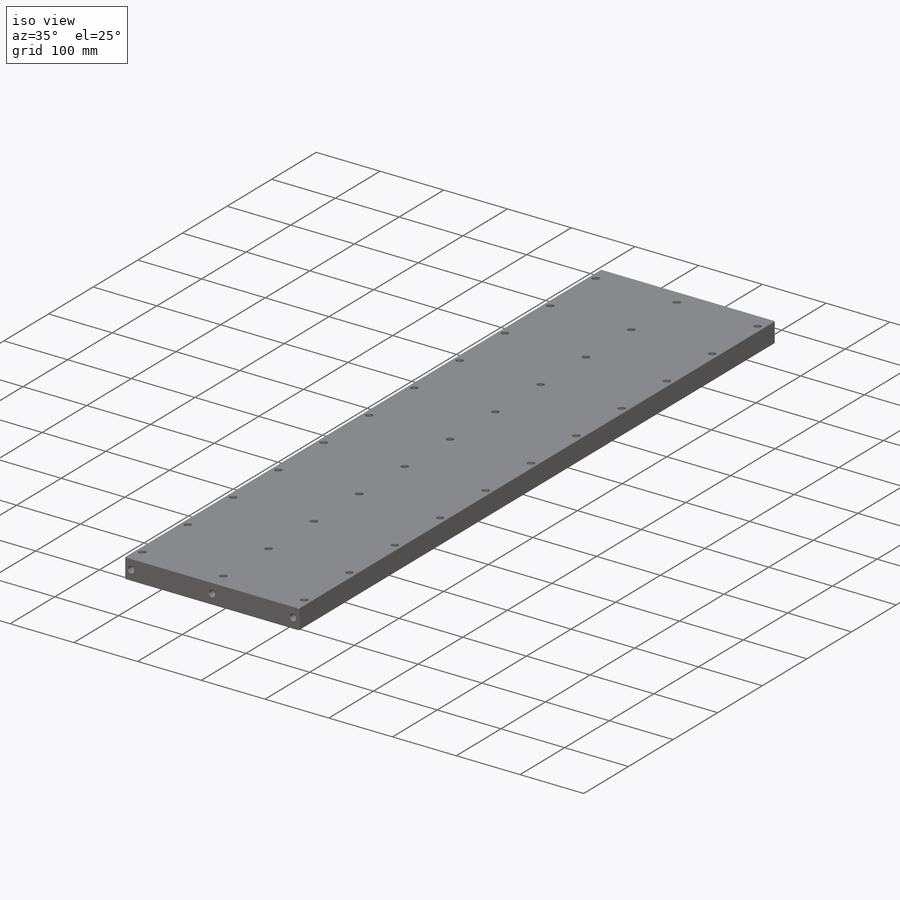
[diagram: iso view]
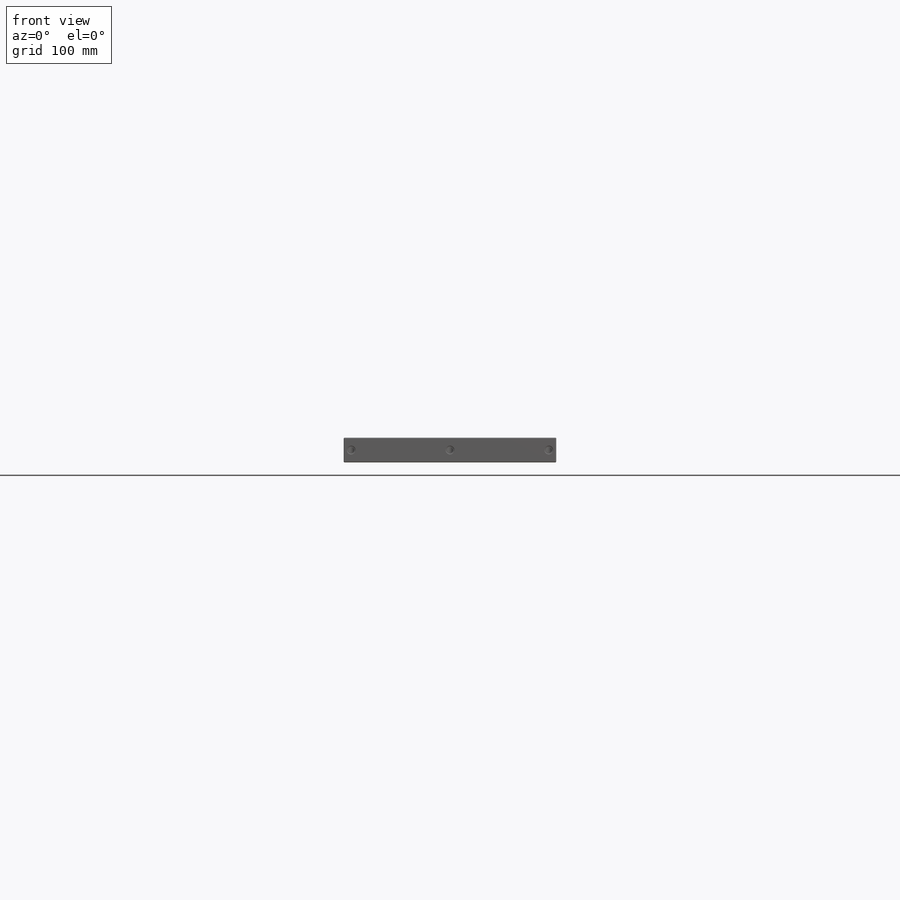
[diagram: front view]
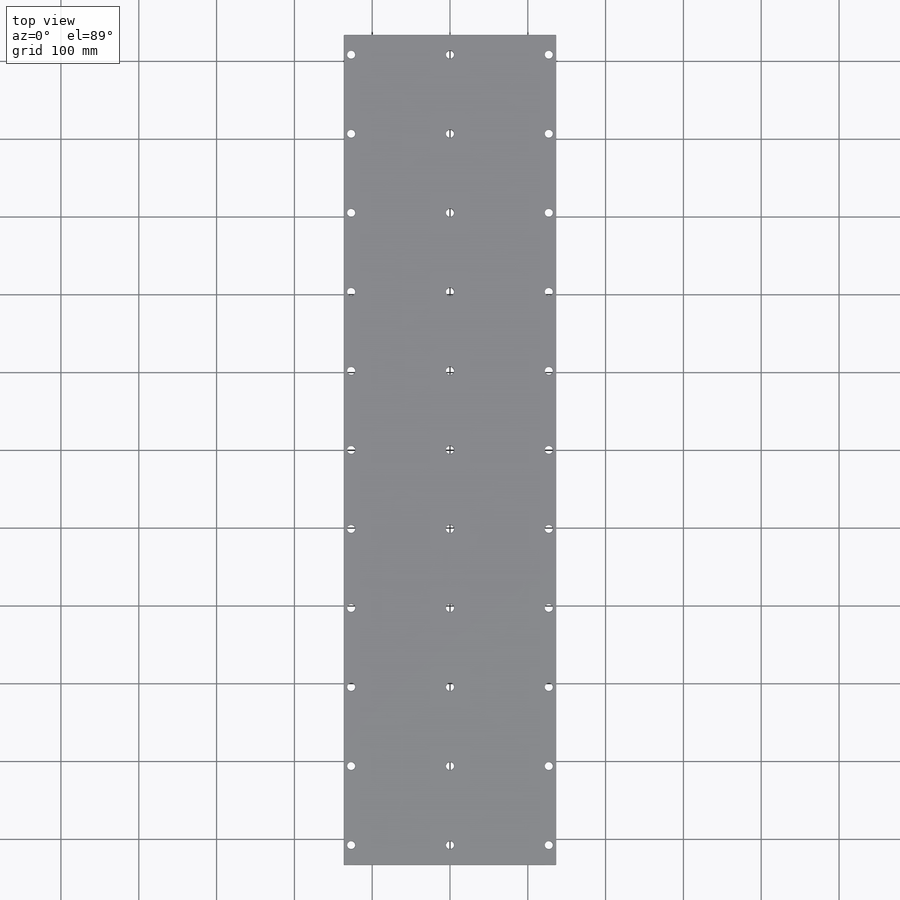
[diagram: top view]
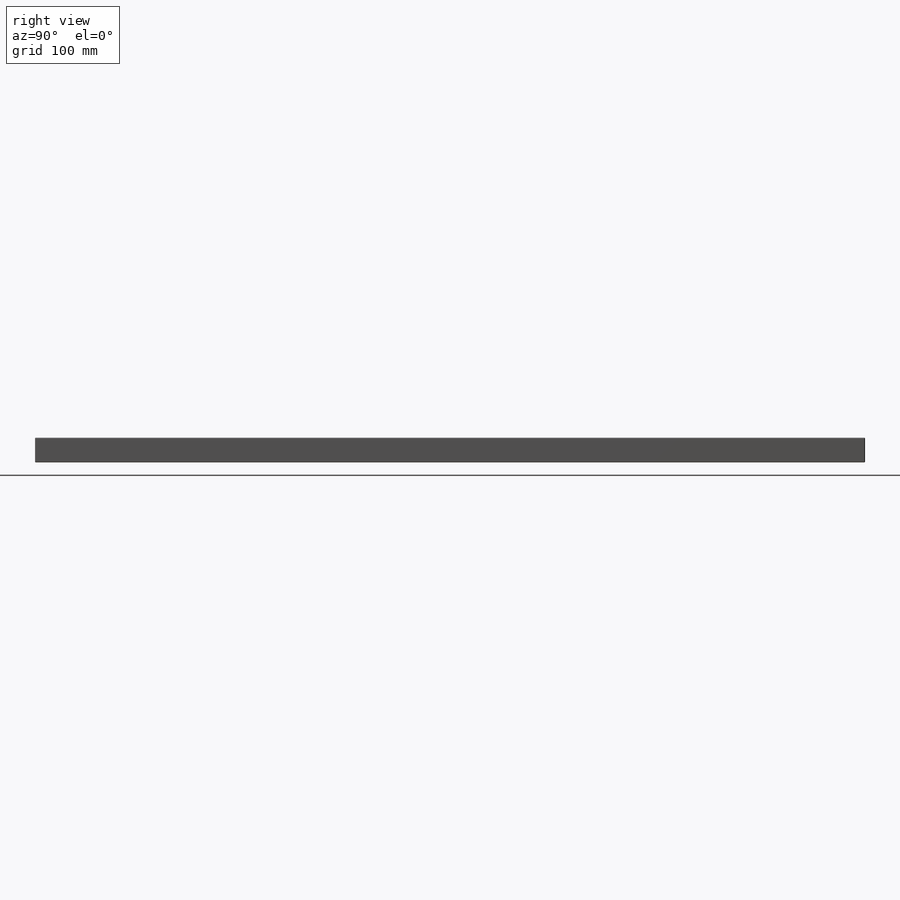
[diagram: right view]
SOLIDWORKS PART (.sldprt)
format: sldprt  version: not decoded by parser v0  size: 956,928 bytes
history: native  units: mm
features: sketch x13, hole x6, plane x3, pattern_linear x3, material x1, extrude x1, mirror x1, chamfer x1 + 2 further entries (+11 scaffold rows collapsed)
feature tree (42):
  scaffold x11  (default folders/planes/origin — collapsed)
  material  "6061-T6 Al"
  plane  "FRONT"
  plane  "TOP"
  plane  "RIGHT"
  "Top Axis"
  "Right Axis"
  sketch  "Sketch1"  dims[D1=31.75mm D2=273.05mm]
  extrude  "Base-Extrude"  Depth=1066.8mm
  hole  "CBORE for 3/8 Socket Head Cap Screw1"  Diameter=10.31748mm Depth=31.75mm
  sketch  "Sketch3"  dims[D1=9.525mm]
  sketch  "Sketch2"  dims[hole-wizard template sketch: 42 standard entries collapsed; hole parameters kept: c12.Thru Hole Depth=31.75mm c12.C'Bore Dia.=17.4625mm c12.C'Bore Depth=10.668mm c12.Far C'Sink Dia.=11.684mm c12.D6=~2.963249mm c12.Far C'Sink Angle=82.0deg]
  pattern_linear  "LPattern1"  Count1=6 Count2=6 Spacing1=101.6mm Spacing2=101.6mm
  hole  "3/8-16 Tapped Hole1"  Diameter=7.9375mm Depth=23.8252mm
  sketch  "Sketch5"
  sketch  "Sketch4"  dims[hole-wizard template sketch: 27 standard entries collapsed; hole parameters kept: c8.Tap Drill Depth=23.8252mm c8.Thread Major Dia.=9.525mm c8.Thread Depth=19.05mm c8.Near C'Sink Dia.=11.176mm c8.D6=~4.399409mm c8.Near C'Sink Angle=120.0deg c8.D7=~14.816244mm c8.Drill Angle=118.0deg]
  hole  "1/4 (0.25) Vent Hole 1"  Diameter=6.35mm Depth=31.75mm
  sketch  "Sketch15"  dims[D1=25.4mm]
  sketch  "Sketch14"  dims[hole-wizard template sketch: 60 standard entries collapsed; hole parameters kept: c18.Thru Hole Depth=31.75mm]
  pattern_linear  "LPattern2"  Count1=6 Count2=5 Spacing1=101.6mm Spacing2=101.6mm
  hole  "CBORE for 3/8 Socket Head Cap Screw2"  Diameter=10.31748mm Depth=31.75mm
  sketch  "Sketch7"  dims[D1=9.525mm D2=9.525mm]
  sketch  "Sketch6"  dims[hole-wizard template sketch: 42 standard entries collapsed; hole parameters kept: c12.Thru Hole Depth=31.75mm c12.C'Bore Dia.=17.4752mm c12.C'Bore Depth=10.668mm c12.Far C'Sink Dia.=11.684mm c12.D6=~2.963249mm c12.Far C'Sink Angle=82.0deg]
  pattern_linear  "LPattern3"  Count1=6 Count2=6 Spacing1=101.6mm Spacing2=101.6mm
  hole  "3/8-16 Tapped Hole2"  Diameter=7.9375mm Depth=23.8252mm
  sketch  "Sketch9"  dims[D1=9.525mm]
  sketch  "Sketch8"  dims[hole-wizard template sketch: 27 standard entries collapsed; hole parameters kept: c8.Tap Drill Depth=23.8252mm c8.Thread Major Dia.=9.525mm c8.Thread Depth=19.05mm c8.Near C'Sink Dia.=11.176mm c8.D6=~4.399409mm c8.Near C'Sink Angle=120.0deg c8.D7=~14.816244mm c8.Drill Angle=118.0deg]
  hole  "1/4 (0.25) Vent Hole"  Diameter=6.35mm Depth=31.75mm
  sketch  "Sketch11"  dims[D1=25.4mm]
  sketch  "Sketch10"  dims[hole-wizard template sketch: 60 standard entries collapsed; hole parameters kept: c18.Thru Hole Depth=31.75mm]
  mirror  "Mirror1"
  chamfer  "Chamfer1"  Distance=0.762mm Angle=45deg
decode coverage: 23 of 25 modeling features carry decoded parameters; 2 rows unclassified (native names shown)
note: ~ marks probable driven/reference dimensions
summary: Diameter pulled from absorbed wizard sketch
note: suppression state not decoded; provenance and decode notes live in map.json
